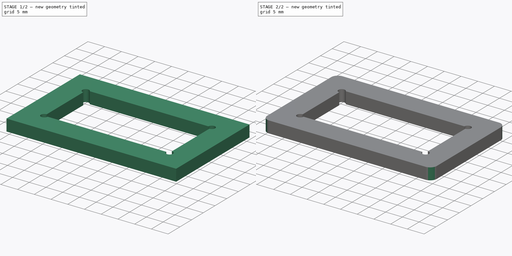
[diagram: build sequence overview — one tinted view per stage of 2, left to right]
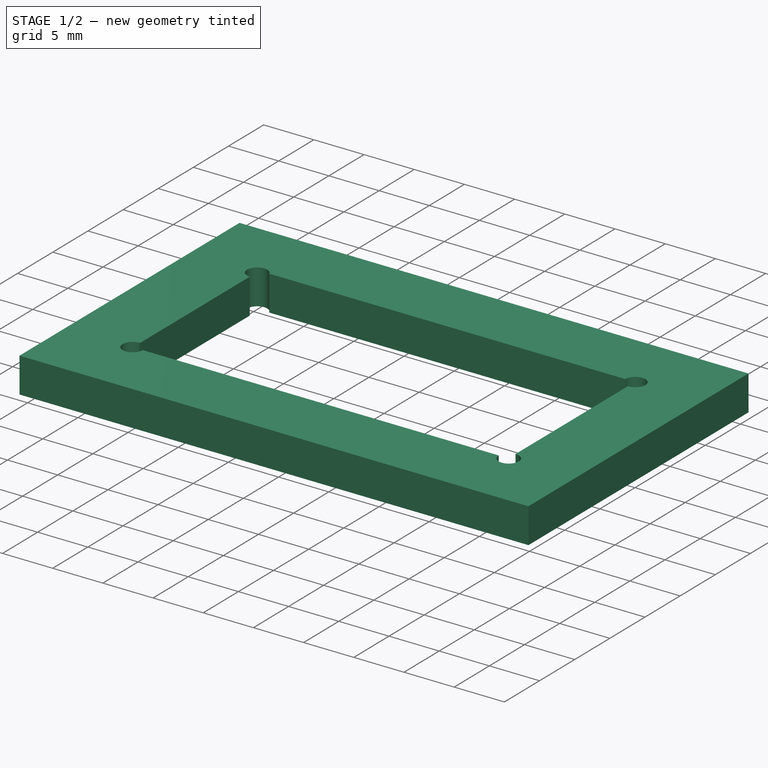
[diagram: stage 1 of 2 — iso view after this stage's code; geometry added in this stage tinted green]
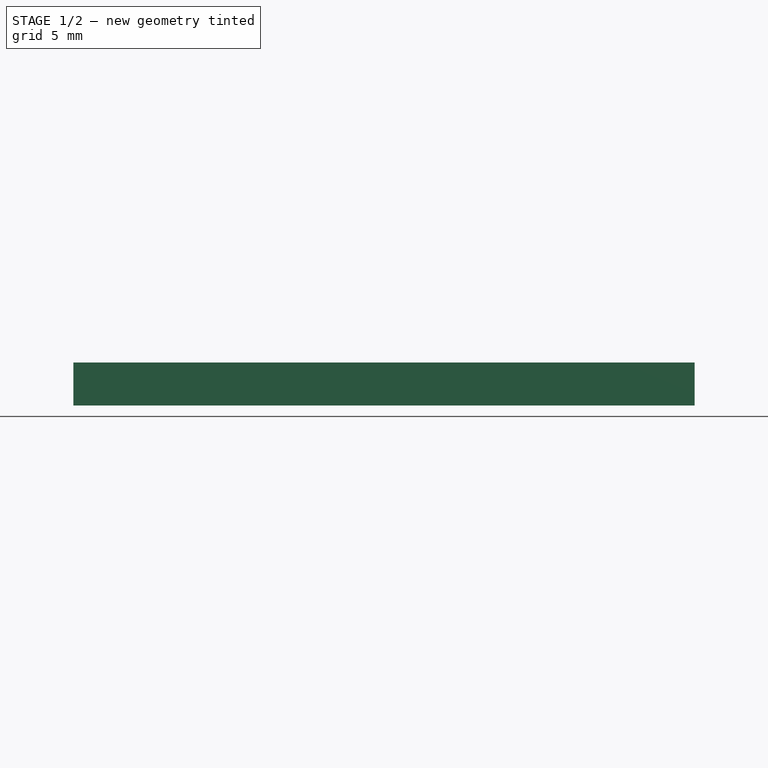
[diagram: stage 1 of 2 — front view after this stage's code; geometry added in this stage tinted green]
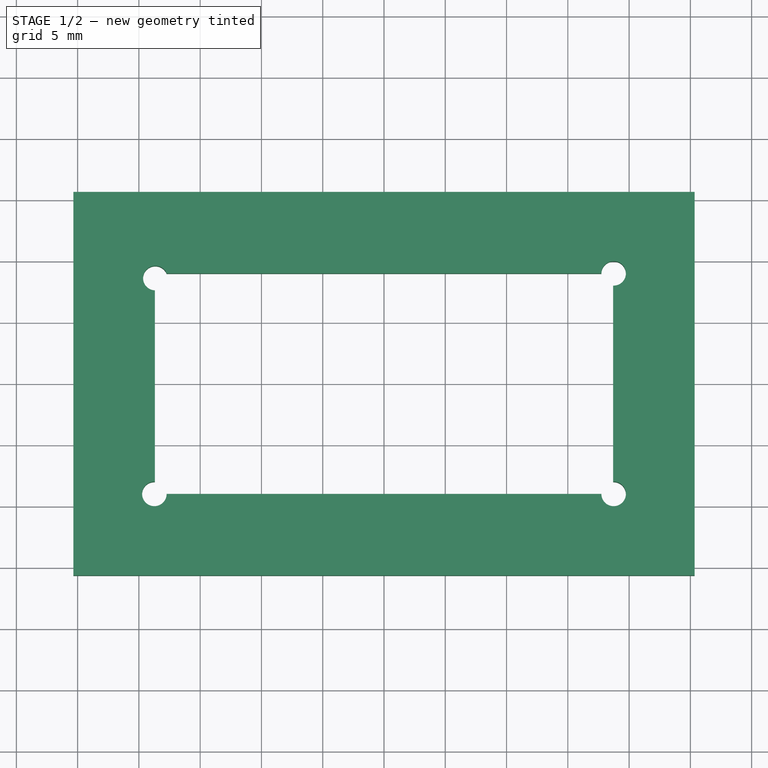
[diagram: stage 1 of 2 — top view after this stage's code; geometry added in this stage tinted green]
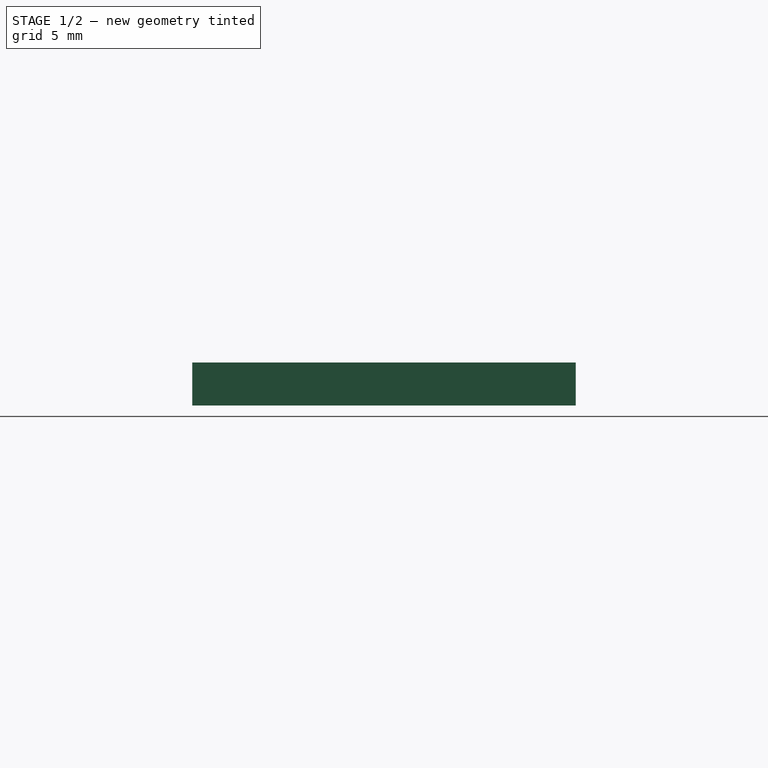
[diagram: stage 1 of 2 — right view after this stage's code; geometry added in this stage tinted green]
FCSTD DOCUMENT  (FreeCAD 0.19R24291 (Git))
Label: Saab-Panel-Backing
License: All rights reserved
LicenseURL: http://en.wikipedia.org/wiki/All_rights_reserved
objects: Sketcher::SketchObject×1, PartDesign::Pad×1, PartDesign::Fillet×1, PartDesign::Body×1
note: 6 computed .brp shape members not serialized (recipe doc carries the construction recipe); baked Part::Feature solids carry a one-line shape summary decoded from their .brp

FEATURE [Sketcher::SketchObject] Sketch
  FullyConstrained = true
  MapMode = 5
  Support = -> [XY_Plane]
  sketch-geometry (12):
    g0: LineSegment StartX=-25.35 StartY=15.65 StartZ=0 EndX=25.35 EndY=15.65 EndZ=0
    g1: LineSegment StartX=25.35 StartY=15.65 StartZ=0 EndX=25.35 EndY=-15.65 EndZ=0
    g2: LineSegment StartX=25.35 StartY=-15.65 StartZ=0 EndX=-25.35 EndY=-15.65 EndZ=0
    g3: LineSegment StartX=-25.35 StartY=-15.65 StartZ=0 EndX=-25.35 EndY=15.65 EndZ=0
    g4: LineSegment StartX=-17.739 StartY=9 StartZ=0 EndX=17.739 EndY=9 EndZ=0
    g5: LineSegment StartX=18.7 StartY=8.00076 StartZ=0 EndX=18.7 EndY=-8.00076 EndZ=0
    g6: LineSegment StartX=17.739 StartY=-9 StartZ=0 EndX=-17.739 EndY=-9 EndZ=0
    g7: LineSegment StartX=-18.7 StartY=-8.00076 StartZ=0 EndX=-18.7 EndY=7.61377 EndZ=0
    g8: ArcOfCircle CenterX=-18.661 CenterY=8.61301 CenterZ=0 NormalX=0 NormalY=0 NormalZ=1 AngleXU=0 Radius=1 StartAngle=0.397365 EndAngle=4.67342
    g9: ArcOfCircle CenterX=18.739 CenterY=9 CenterZ=0 NormalX=0 NormalY=0 NormalZ=1 AngleXU=0 Radius=1 StartAngle=4.67342 EndAngle=9.42478
    g10: ArcOfCircle CenterX=18.739 CenterY=-9 CenterZ=0 NormalX=0 NormalY=0 NormalZ=1 AngleXU=0 Radius=1 StartAngle=3.14159 EndAngle=7.89295
    g11: ArcOfCircle CenterX=-18.739 CenterY=-9 CenterZ=0 NormalX=0 NormalY=0 NormalZ=1 AngleXU=0 Radius=1 StartAngle=1.53183 EndAngle=6.28319
  constraints (34):
    c: Coincident(g0,g1)
    c: Coincident(g1,g2)
    c: Coincident(g2,g3)
    c: Coincident(g3,g0)
    c: Horizontal(g2)
    c: Vertical(g3)
    c: DistanceX(g0,g0) = 50.7
    c: DistanceY(g1,g0) = 31.3
    c: Symmetric(g0,g0,g-2)
    c: Symmetric(g0,g1,g-1)
    c: Horizontal(g6)
    c: Vertical(g7)
    c: DistanceX(g8,g9) = 37.4
    c: DistanceY(g10,g9) = 18
    c: Radius(g8) = 1
    c: Equal(g8,g11)
    c: Equal(g11,g10)
    c: Equal(g10,g9)
    c: Coincident(g4,g8)
    c: Coincident(g7,g8)
    c: Coincident(g7,g11)
    c: Coincident(g6,g11)
    c: Coincident(g4,g9)
    c: Coincident(g5,g9)
    c: Coincident(g6,g10)
    c: Coincident(g5,g10)
    c: Angle(g8) = 4.27606
    c: DistanceY(g-1,g4) = 9
    c: DistanceX(g7,g-1) = 18.7
    c: Equal(g4,g6)
    c: Symmetric(g4,g6,g-1)
    c: Symmetric(g4,g4,g-2)
    c: Symmetric(g5,g7,g-2)
    c: Symmetric(g5,g5,g-1)
FEATURE [PartDesign::Pad] Pad  label="Panel-back"
  Direction = (1,1,1)
  Length = 3.5
  Length2 = 100
  Profile = -> Sketch
  Refine = true
  Type = 0
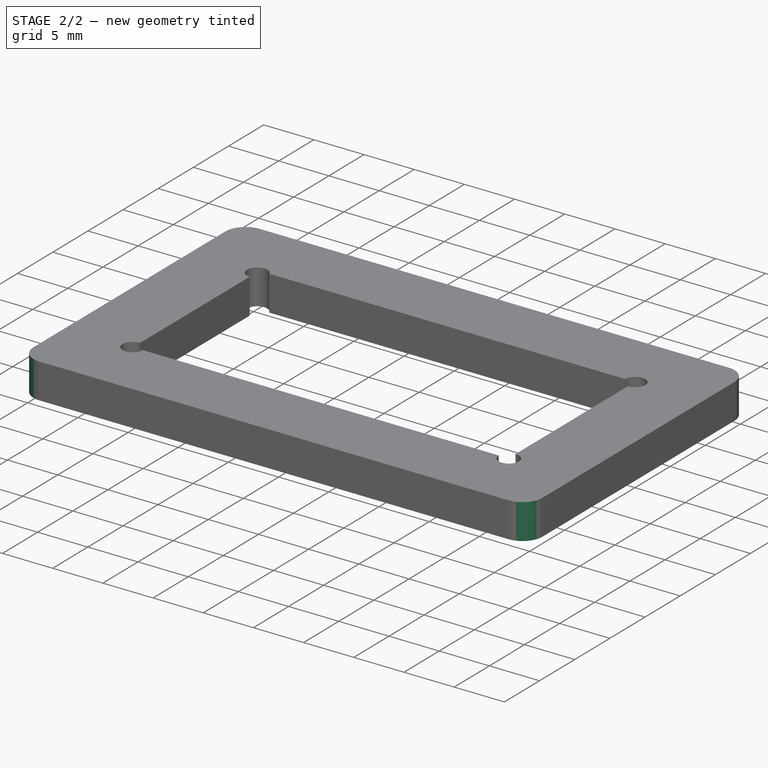
[diagram: stage 2 of 2 — iso view after this stage's code; geometry added in this stage tinted green]
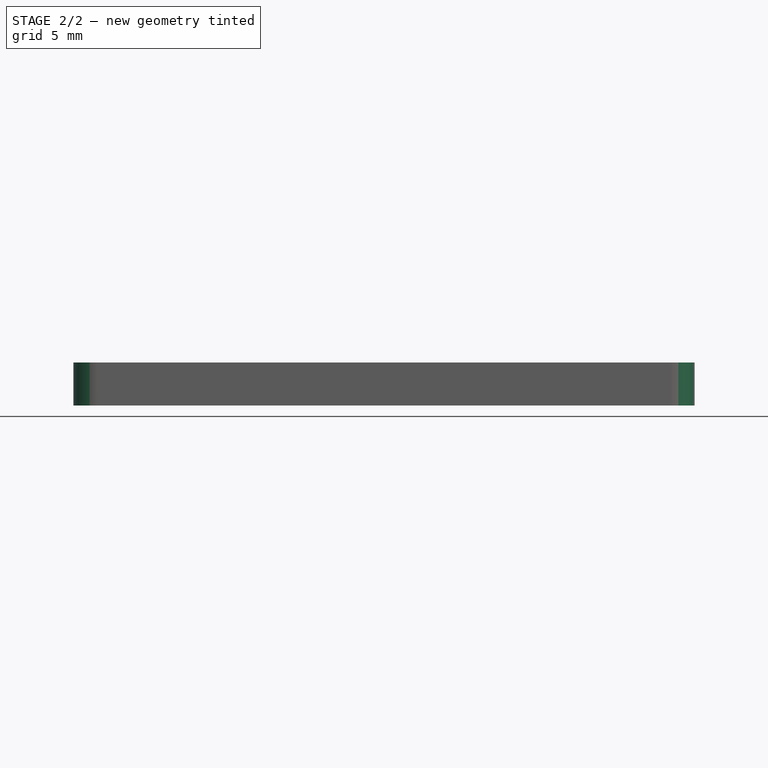
[diagram: stage 2 of 2 — front view after this stage's code; geometry added in this stage tinted green]
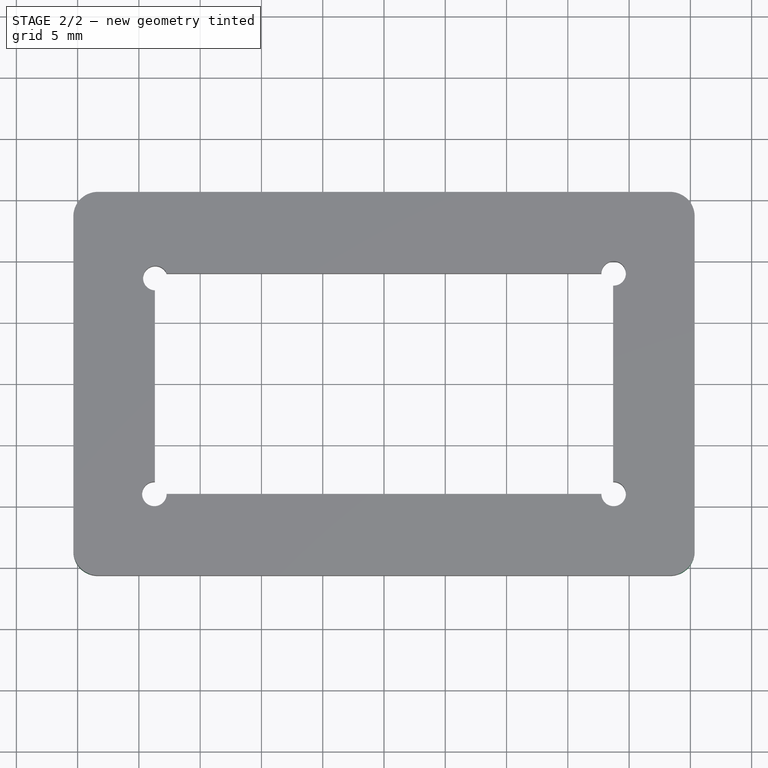
[diagram: stage 2 of 2 — top view after this stage's code; geometry added in this stage tinted green]
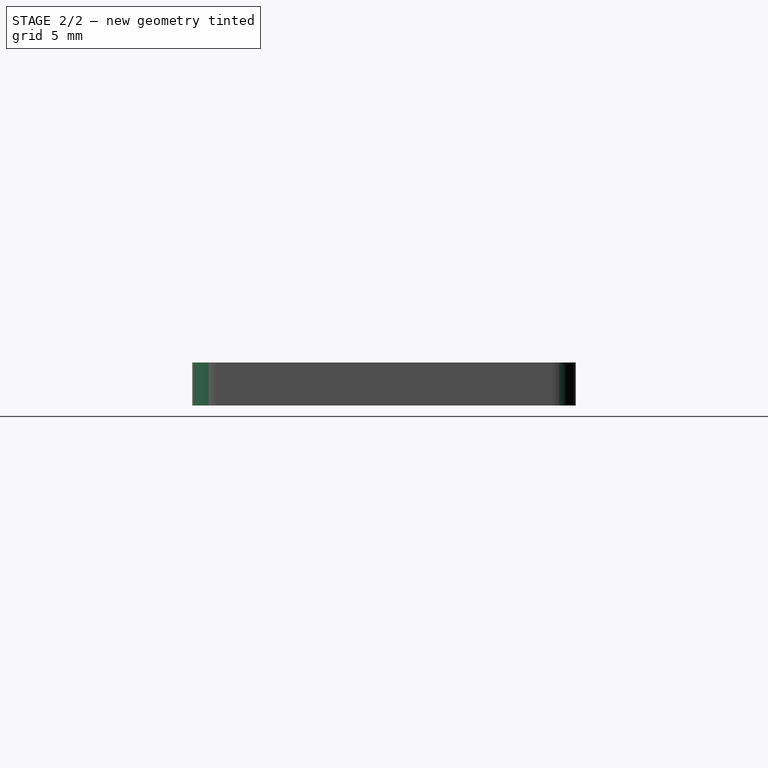
[diagram: stage 2 of 2 — right view after this stage's code; geometry added in this stage tinted green]
FEATURE [PartDesign::Fillet] Fillet  label="OutsideFillets"
  Base = -> Pad [Edge2,Edge5,Edge8,Edge1]
  BaseFeature = -> Pad
  Radius = 2
  Refine = true
  SupportTransform = false
FEATURE [PartDesign::Body] Body
  Group = -> [Sketch,Pad,Fillet]
  Origin = -> Origin
  Tip = -> Fillet
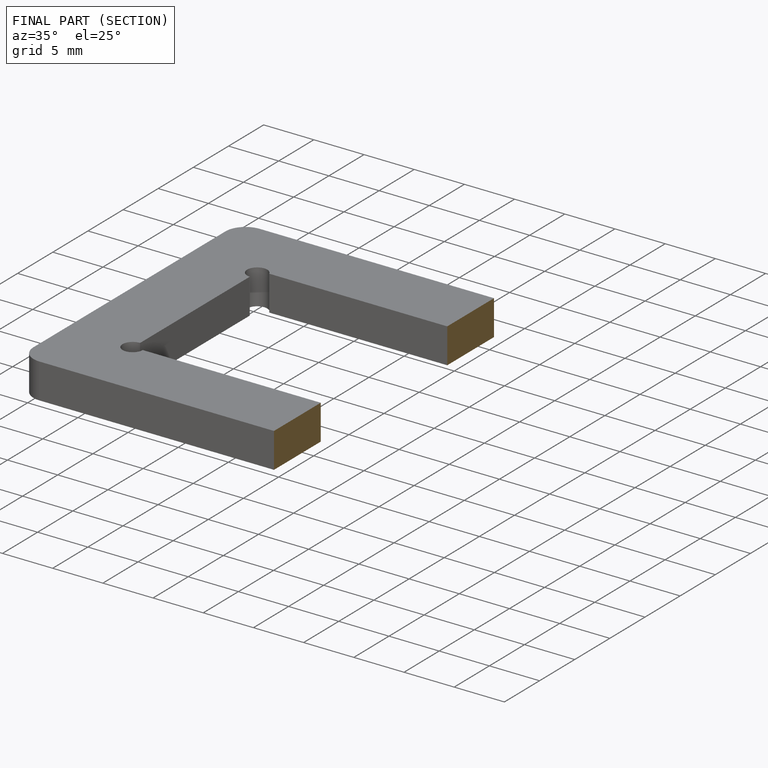
[diagram: finished part — half-section view (interior)]
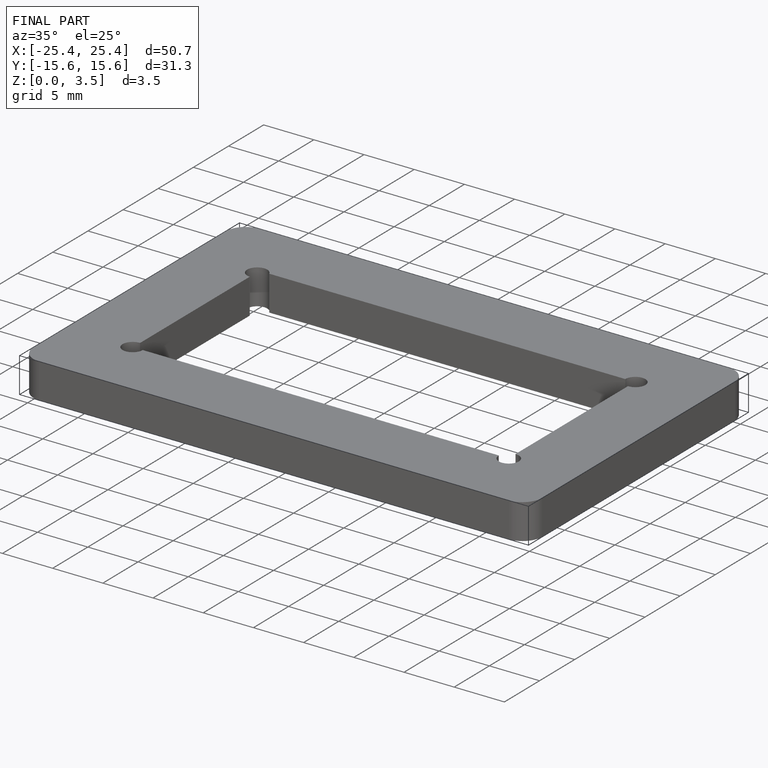
[diagram: finished part — iso view with bounding-box wireframe]
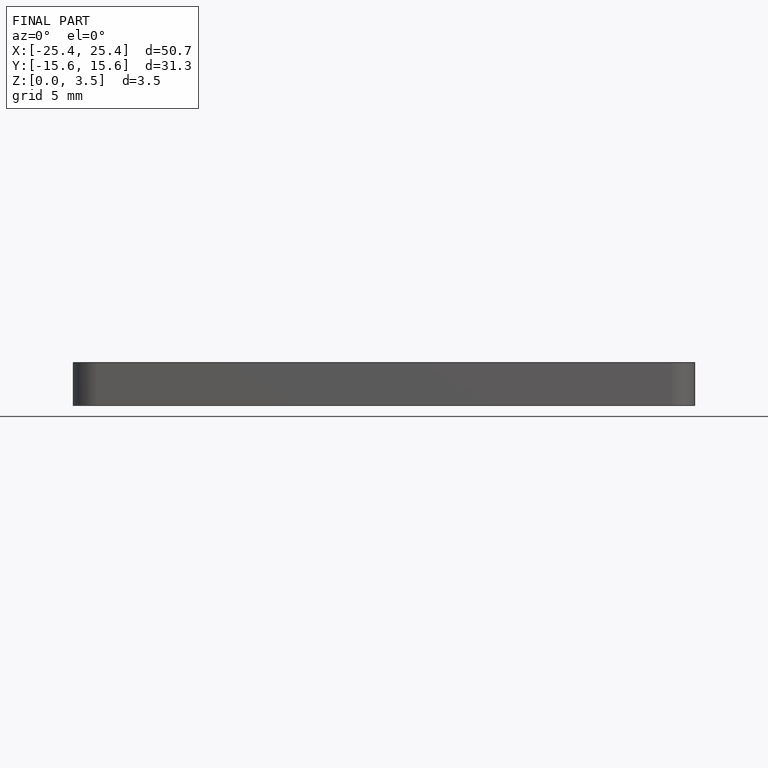
[diagram: finished part — front view with bounding-box wireframe]
